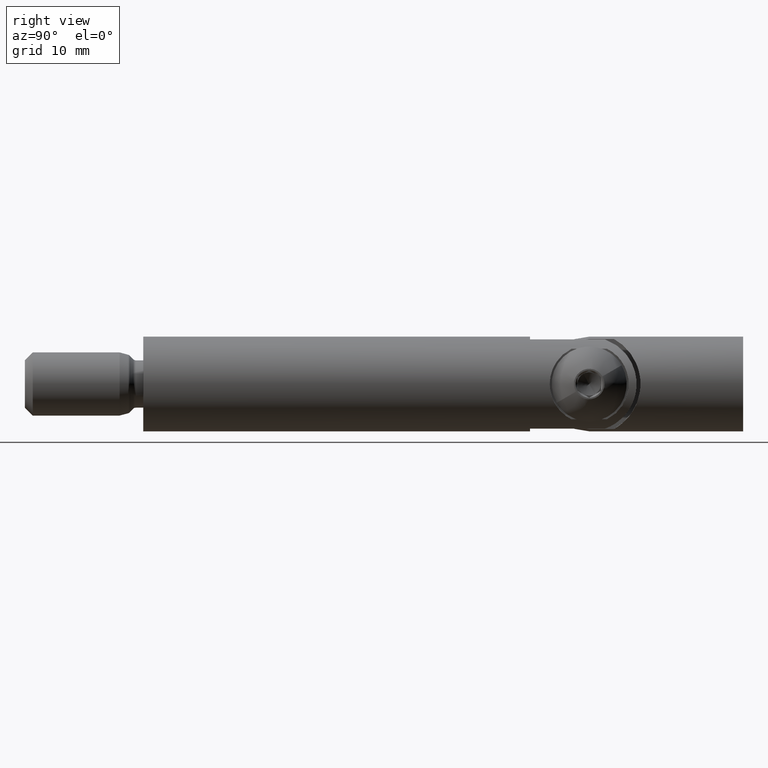
[diagram: clean part render]
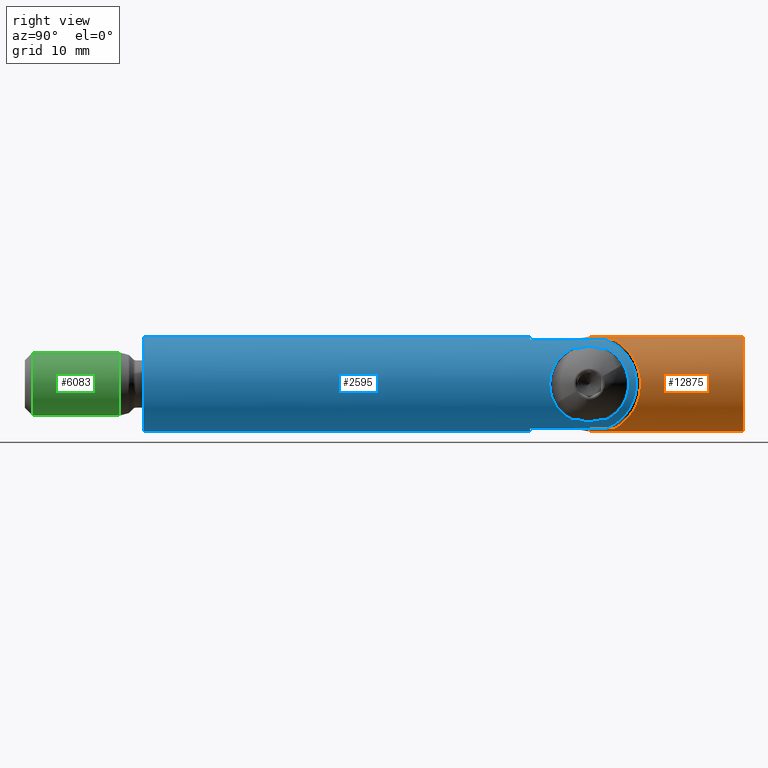
[diagram: same view with three faces highlighted in distinct colors, each labeled with its STEP entity id]
A machine part, right view with three faces highlighted in distinct colors.
Their STEP definitions:

[orange] entity #12875 — the highlighted cylindrical surface (partial cylindrical patch) has radius 6 mm, axis along (-0, -1, 0).
#17 = CARTESIAN_POINT ( 'NONE',  ( 5.702564255147019700, 12.22645336163187000, 1.873063021910693800 ) ) ;
#242 = DIRECTION ( 'NONE',  ( -6.270394377842564300E-033, -1.000000000000000000, 5.200459125639017200E-051 ) ) ;
#297 = CARTESIAN_POINT ( 'NONE',  ( 3.679300111451203400, 10.44608502935369500, -4.748389396279571400 ) ) ;
#591 = LINE ( 'NONE', #6382, #3626 ) ;
#1058 = ORIENTED_EDGE ( 'NONE', *, *, #6338, .F. ) ;
#1211 = ORIENTED_EDGE ( 'NONE', *, *, #12854, .T. ) ;
#1253 = CARTESIAN_POINT ( 'NONE',  ( 5.992946940085370300, 12.49348747734984900, -0.3394110387251262400 ) ) ;
#1317 = CARTESIAN_POINT ( 'NONE',  ( 5.878530023254685800, 12.38803403405258900, 1.213493734268718200 ) ) ;
#1586 = CARTESIAN_POINT ( 'NONE',  ( 1.875000000000001800, 25.49999999999999600, 5.699506557588999400 ) ) ;
#1700 = CARTESIAN_POINT ( 'NONE',  ( 0.0000000000000000000, 6.000000000000005300, 0.0000000000000000000 ) ) ;
#1707 = CARTESIAN_POINT ( 'NONE',  ( 3.203186419541641100, 10.06088980599747300, -5.081736704168082300 ) ) ;
#2073 = CARTESIAN_POINT ( 'NONE',  ( 7.347880794884120700E-016, 6.000000000000005300, 6.000000000000000900 ) ) ;
#2265 = EDGE_LOOP ( 'NONE', ( #1058, #1211, #7801, #5851, #12864, #5136, #14755, #12430 ) ) ;
#2307 = AXIS2_PLACEMENT_3D ( 'NONE', #8566, #5872, #10951 ) ;
#2377 = LINE ( 'NONE', #1586, #11143 ) ;
#2552 = CARTESIAN_POINT ( 'NONE',  ( 5.840910011443947200, 12.35341845738016200, 1.383063939325160900 ) ) ;
#2607 = CARTESIAN_POINT ( 'NONE',  ( 5.402969927907899500, 11.95294901552457400, -2.628867403611108200 ) ) ;
#2638 = VERTEX_POINT ( 'NONE', #2073 ) ;
#2671 = CARTESIAN_POINT ( 'NONE',  ( 3.908599352263412400, 10.63138324985793100, 4.588644465451449300 ) ) ;
#2777 = CARTESIAN_POINT ( 'NONE',  ( 5.084483756076971300, 11.66545912469395000, 3.201807720369405100 ) ) ;
#2891 = DIRECTION ( 'NONE',  ( -1.776356839400250500E-015, 0.0000000000000000000, -1.000000000000000000 ) ) ;
#2946 = VERTEX_POINT ( 'NONE', #10747 ) ;
#3115 = CIRCLE ( 'NONE', #3136, 6.000000000000000900 ) ;
#3136 = AXIS2_PLACEMENT_3D ( 'NONE', #1700, #9531, #2891 ) ;
#3626 = VECTOR ( 'NONE', #15434, 1000.000000000000000 ) ;
#3922 = CARTESIAN_POINT ( 'NONE',  ( 5.091664601751723800, 11.67191029162921900, -3.190294571182189300 ) ) ;
#4090 = VERTEX_POINT ( 'NONE', #13478 ) ;
#4144 = CARTESIAN_POINT ( 'NONE',  ( 2.165471735492421800, 9.299283041295447900, -5.603948372236426500 ) ) ;
#4255 = CARTESIAN_POINT ( 'NONE',  ( 4.338749211671258300, 11.00622850641173800, -4.154858430257192500 ) ) ;
#4266 = EDGE_CURVE ( 'NONE', #4090, #5270, #591, .T. ) ;
#4418 = EDGE_CURVE ( 'NONE', #12019, #7515, #13872, .T. ) ;
#4486 = CARTESIAN_POINT ( 'NONE',  ( 0.0000000000000000000, 25.49999999999999600, 0.0000000000000000000 ) ) ;
#4870 = EDGE_CURVE ( 'NONE', #2638, #6960, #7295, .T. ) ;
#5022 = LINE ( 'NONE', #6299, #8907 ) ;
#5136 = ORIENTED_EDGE ( 'NONE', *, *, #10599, .F. ) ;
#5239 = CARTESIAN_POINT ( 'NONE',  ( 4.540473561626751800, 11.18248850333112000, -3.934115004568863800 ) ) ;
#5270 = VERTEX_POINT ( 'NONE', #14322 ) ;
#5292 = CARTESIAN_POINT ( 'NONE',  ( 4.347331513690996900, 11.01182362367340800, 4.179968714071664600 ) ) ;
#5579 = FACE_OUTER_BOUND ( 'NONE', #2265, .T. ) ;
#5851 = ORIENTED_EDGE ( 'NONE', *, *, #10173, .F. ) ;
#5872 = DIRECTION ( 'NONE',  ( 6.270394377842564300E-033, 1.000000000000000000, -5.200459125639017200E-051 ) ) ;
#6060 = AXIS2_PLACEMENT_3D ( 'NONE', #13100, #6522, #7834 ) ;
#6299 = CARTESIAN_POINT ( 'NONE',  ( 1.875000000000001800, 25.49999999999999600, -5.699506557588999400 ) ) ;
#6338 = EDGE_CURVE ( 'NONE', #6796, #4090, #7069, .T. ) ;
#6382 = CARTESIAN_POINT ( 'NONE',  ( 1.617781153285278400E-032, 25.49999999999999600, -6.000000000000000900 ) ) ;
#6498 = CARTESIAN_POINT ( 'NONE',  ( 5.962985061293454500, 12.46584545384666700, -0.6880567118182585600 ) ) ;
#6522 = DIRECTION ( 'NONE',  ( 6.270394377842564300E-033, 1.000000000000000000, -5.200459125639017200E-051 ) ) ;
#6604 = DIRECTION ( 'NONE',  ( 6.270394377842564300E-033, 1.000000000000000000, -5.200459125639017200E-051 ) ) ;
#6624 = CARTESIAN_POINT ( 'NONE',  ( 5.707417375835262900, 12.23089832068805900, -1.858353953437220000 ) ) ;
#6793 = CARTESIAN_POINT ( 'NONE',  ( 1.875000000000001800, 9.124999999999994700, -5.699506557588999400 ) ) ;
#6796 = VERTEX_POINT ( 'NONE', #14665 ) ;
#6960 = VERTEX_POINT ( 'NONE', #9176 ) ;
#7069 = CIRCLE ( 'NONE', #2307, 6.000000000000000900 ) ;
#7295 = CIRCLE ( 'NONE', #6060, 6.000000000000000900 ) ;
#7515 = VERTEX_POINT ( 'NONE', #6793 ) ;
#7801 = ORIENTED_EDGE ( 'NONE', *, *, #4870, .T. ) ;
#7815 = CARTESIAN_POINT ( 'NONE',  ( 5.844978074349970900, 12.35715918803105700, -1.365743324101389400 ) ) ;
#7834 = DIRECTION ( 'NONE',  ( 2.696301922142130200E-033, 0.0000000000000000000, -1.000000000000000000 ) ) ;
#7842 = VECTOR ( 'NONE', #14891, 1000.000000000000000 ) ;
#8147 = CARTESIAN_POINT ( 'NONE',  ( 2.436641307235134900, 9.486557849900700400, -5.490643595582534800 ) ) ;
#8255 = LINE ( 'NONE', #12113, #7842 ) ;
#8440 = DIRECTION ( 'NONE',  ( -6.270394377842564300E-033, -1.000000000000000000, 5.200459125639017200E-051 ) ) ;
#8566 = CARTESIAN_POINT ( 'NONE',  ( 0.0000000000000000000, 25.49999999999999600, 0.0000000000000000000 ) ) ;
#8907 = VECTOR ( 'NONE', #6604, 1000.000000000000000 ) ;
#9079 = CARTESIAN_POINT ( 'NONE',  ( 5.999301171840913000, 12.49935492803685100, 0.3605767057599157400 ) ) ;
#9138 = CARTESIAN_POINT ( 'NONE',  ( 5.538450211437708300, 12.07637670554109400, -2.331938963265060200 ) ) ;
#9176 = CARTESIAN_POINT ( 'NONE',  ( 1.875000000000001800, 6.000000000000005300, 5.699506557588999400 ) ) ;
#9201 = CARTESIAN_POINT ( 'NONE',  ( 2.435892575228126400, 9.486065115203496500, 5.490915627202842800 ) ) ;
#9255 = CARTESIAN_POINT ( 'NONE',  ( 5.397768190748371000, 11.94822271513283800, 2.639629955689386100 ) ) ;
#9315 = CARTESIAN_POINT ( 'NONE',  ( 1.875000000000001800, 9.124999999999994700, 5.699506557588999400 ) ) ;
#9531 = DIRECTION ( 'NONE',  ( 6.270394377842564300E-033, 1.000000000000000000, -5.200459125639017200E-051 ) ) ;
#10173 = EDGE_CURVE ( 'NONE', #12019, #6960, #2377, .T. ) ;
#10296 = CYLINDRICAL_SURFACE ( 'NONE', #12684, 6.000000000000000900 ) ;
#10554 = CARTESIAN_POINT ( 'NONE',  ( 2.952969745838433200, 9.865114185793784100, 5.231032091592900300 ) ) ;
#10599 = EDGE_CURVE ( 'NONE', #2946, #7515, #5022, .T. ) ;
#10605 = CARTESIAN_POINT ( 'NONE',  ( 3.199166822647293400, 10.05774676843748600, 5.084145294204413200 ) ) ;
#10747 = CARTESIAN_POINT ( 'NONE',  ( 1.875000000000001800, 6.000000000000005300, -5.699506557588999400 ) ) ;
#10826 = CARTESIAN_POINT ( 'NONE',  ( 1.875000000000001800, 9.124999999999994700, -5.699506557588999400 ) ) ;
#10951 = DIRECTION ( 'NONE',  ( -2.696301922142130200E-033, 0.0000000000000000000, 1.000000000000000000 ) ) ;
#11143 = VECTOR ( 'NONE', #242, 1000.000000000000000 ) ;
#11659 = CARTESIAN_POINT ( 'NONE',  ( 5.533975599518213600, 12.07229902574371600, 2.342120990994260000 ) ) ;
#11713 = CARTESIAN_POINT ( 'NONE',  ( 5.758066267711471100, 12.27734270178811500, -1.695198033741983600 ) ) ;
#11935 = CARTESIAN_POINT ( 'NONE',  ( 2.955671222718650800, 9.867151038863983800, -5.229569349098343700 ) ) ;
#12019 = VERTEX_POINT ( 'NONE', #13721 ) ;
#12113 = CARTESIAN_POINT ( 'NONE',  ( 7.347880794884120700E-016, 25.49999999999999600, 6.000000000000000900 ) ) ;
#12430 = ORIENTED_EDGE ( 'NONE', *, *, #4266, .F. ) ;
#12684 = AXIS2_PLACEMENT_3D ( 'NONE', #4486, #8440, #15052 ) ;
#12854 = EDGE_CURVE ( 'NONE', #6796, #2638, #8255, .T. ) ;
#12864 = ORIENTED_EDGE ( 'NONE', *, *, #4418, .T. ) ;
#12875 = ADVANCED_FACE ( 'NONE', ( #5579 ), #10296, .T. ) ;
#12957 = CARTESIAN_POINT ( 'NONE',  ( 6.000331943230008800, 12.50030640904586200, -0.1625549102638968200 ) ) ;
#13017 = CARTESIAN_POINT ( 'NONE',  ( 4.916262054299631100, 11.51470031006891000, -3.453046256055512900 ) ) ;
#13082 = CARTESIAN_POINT ( 'NONE',  ( 2.165372878115555500, 9.299223726869327000, 5.603980893925760000 ) ) ;
#13100 = CARTESIAN_POINT ( 'NONE',  ( 0.0000000000000000000, 6.000000000000005300, 0.0000000000000000000 ) ) ;
#13478 = CARTESIAN_POINT ( 'NONE',  ( -4.495853365111217700E-032, 25.49999999999999600, -6.000000000000000900 ) ) ;
#13721 = CARTESIAN_POINT ( 'NONE',  ( 1.875000000000001800, 9.124999999999994700, 5.699506557588999400 ) ) ;
#13872 = B_SPLINE_CURVE_WITH_KNOTS ( 'NONE', 3,
 ( #9315, #13082, #9201, #10554, #10605, #2671, #5292, #14201, #2777, #9255, #11659, #17, #14378, #2552, #1317, #16797, #9079, #12957, #1253, #6498, #15665, #15558, #7815, #11713, #6624, #9138, #2607, #3922, #13017, #5239, #4255, #15892, #297, #1707, #11935, #8147, #4144, #10826 ),
 .UNSPECIFIED., .F., .F.,
 ( 4, 2, 2, 2, 2, 2, 2, 2, 2, 2, 2, 2, 2, 2, 2, 2, 2, 2, 4 ),
 ( 0.0000000000000000000, 0.001036031452614964600, 0.002072062905229929200, 0.004144125810459864400, 0.005180157263074830500, 0.006216188715689794800, 0.006734204441997277000, 0.007252220168304760100, 0.008288251620919727000, 0.008806267347227208400, 0.009324283073534691400, 0.009842298799842174500, 0.01036031452614966100, 0.01139634597876462900, 0.01243237743137959500, 0.01346840888399456400, 0.01450444033660953200, 0.01554047178922450200, 0.01657650324183946800 ),
 .UNSPECIFIED. ) ;
#14201 = CARTESIAN_POINT ( 'NONE',  ( 4.911105298138324700, 11.51010221644048100, 3.460332669807180100 ) ) ;
#14322 = CARTESIAN_POINT ( 'NONE',  ( -4.495853365111217700E-032, 6.000000000000005300, -6.000000000000000900 ) ) ;
#14378 = CARTESIAN_POINT ( 'NONE',  ( 5.752901328581310200, 12.27260472444943700, 1.712665152811585900 ) ) ;
#14665 = CARTESIAN_POINT ( 'NONE',  ( 7.347880794884120700E-016, 25.49999999999999600, 6.000000000000000900 ) ) ;
#14755 = ORIENTED_EDGE ( 'NONE', *, *, #16709, .T. ) ;
#14891 = DIRECTION ( 'NONE',  ( -6.270394377842564300E-033, -1.000000000000000000, 5.200459125639017200E-051 ) ) ;
#15052 = DIRECTION ( 'NONE',  ( 2.696301922142130200E-033, 0.0000000000000000000, -1.000000000000000000 ) ) ;
#15434 = DIRECTION ( 'NONE',  ( -6.270394377842564300E-033, -1.000000000000000000, 5.200459125639017200E-051 ) ) ;
#15558 = CARTESIAN_POINT ( 'NONE',  ( 5.881553957054157100, 12.39081723198165500, -1.198706441346622200 ) ) ;
#15665 = CARTESIAN_POINT ( 'NONE',  ( 5.940556381582294600, 12.44515927387464600, -0.8598627562042569000 ) ) ;
#15892 = CARTESIAN_POINT ( 'NONE',  ( 3.908788821570147800, 10.63855680015489800, -4.561684255362866500 ) ) ;
#16709 = EDGE_CURVE ( 'NONE', #2946, #5270, #3115, .T. ) ;
#16797 = CARTESIAN_POINT ( 'NONE',  ( 5.968448863603416800, 12.47084509017784400, 0.7045191780326002200 ) ) ;

[blue] entity #2595 — the highlighted cylindrical surface (partial cylindrical patch) has radius 6 mm, axis along (-0, -1, -0).
#18 = CARTESIAN_POINT ( 'NONE',  ( 5.765159873374366300, 51.78421272223530300, -1.679113494019368400 ) ) ;
#162 = CARTESIAN_POINT ( 'NONE',  ( 2.000000000000001800, 49.00000000000000000, 5.656854249492378800 ) ) ;
#647 = EDGE_CURVE ( 'NONE', #16278, #10484, #12213, .T. ) ;
#753 = DIRECTION ( 'NONE',  ( 0.0000000000000000000, 0.0000000000000000000, -1.000000000000000000 ) ) ;
#869 = CARTESIAN_POINT ( 'NONE',  ( 4.111701916349393700, 58.93588644003917700, 4.372226723729888000 ) ) ;
#984 = CARTESIAN_POINT ( 'NONE',  ( 5.922818591520822900, 61.40715862449708600, -0.9907526502935080100 ) ) ;
#1085 = CARTESIAN_POINT ( 'NONE',  ( 5.762565109398844100, 61.21261619643987500, -1.687899081049581300 ) ) ;
#1134 = CARTESIAN_POINT ( 'NONE',  ( 6.000228370917402500, 51.49972595484590700, -0.2409631312233149200 ) ) ;
#1142 = CARTESIAN_POINT ( 'NONE',  ( 5.440223127281997900, 60.81299601376663600, -2.539587668569149400 ) ) ;
#1187 = CARTESIAN_POINT ( 'NONE',  ( 4.228689934642520000, 53.87303610001355700, -4.259931322625762500 ) ) ;
#1203 = CARTESIAN_POINT ( 'NONE',  ( 5.246070261389828500, 60.56536100827363400, -2.919636966049659100 ) ) ;
#1225 = CARTESIAN_POINT ( 'NONE',  ( 0.0000000000000000000, 0.0000000000000000000, -6.000000000000000000 ) ) ;
#1318 = CARTESIAN_POINT ( 'NONE',  ( 5.443493514455044000, 52.18287411686602400, -2.532694194072650200 ) ) ;
#1624 = CARTESIAN_POINT ( 'NONE',  ( 0.0000000000000000000, 0.0000000000000000000, 0.0000000000000000000 ) ) ;
#1672 = CARTESIAN_POINT ( 'NONE',  ( 2.000000000000001800, 58.50000000000000700, -5.656854249492374400 ) ) ;
#1701 = LINE ( 'NONE', #6871, #9059 ) ;
#2396 = CARTESIAN_POINT ( 'NONE',  ( 5.984333450484840900, 61.48123203078347400, -0.4991232668755348800 ) ) ;
#2456 = CARTESIAN_POINT ( 'NONE',  ( 5.877739533197927600, 61.35277413393659200, -1.228144098935931800 ) ) ;
#2478 = EDGE_LOOP ( 'NONE', ( #14727, #9294, #9351, #3098, #5708, #9127, #9876, #5361 ) ) ;
#2503 = CARTESIAN_POINT ( 'NONE',  ( 5.924588586478165600, 51.59070650077592300, -0.9800564602597378000 ) ) ;
#2593 = LINE ( 'NONE', #4337, #9152 ) ;
#2595 = ADVANCED_FACE ( 'NONE', ( #9167, #4852 ), #9571, .T. ) ;
#2606 = LINE ( 'NONE', #11099, #4030 ) ;
#2609 = CARTESIAN_POINT ( 'NONE',  ( 4.461315443328742500, 53.50724820434923900, 4.029132544682180000 ) ) ;
#2729 = VERTEX_POINT ( 'NONE', #15784 ) ;
#2736 = VECTOR ( 'NONE', #15827, 1000.000000000000000 ) ;
#2866 = VERTEX_POINT ( 'NONE', #8850 ) ;
#2932 = DIRECTION ( 'NONE',  ( 0.0000000000000000000, 0.0000000000000000000, -1.000000000000000000 ) ) ;
#3098 = ORIENTED_EDGE ( 'NONE', *, *, #7000, .F. ) ;
#3133 = EDGE_CURVE ( 'NONE', #10246, #2866, #5452, .T. ) ;
#3137 = DIRECTION ( 'NONE',  ( -0.0000000000000000000, 1.000000000000000000, -0.0000000000000000000 ) ) ;
#3236 = CARTESIAN_POINT ( 'NONE',  ( 0.0000000000000000000, 0.0000000000000000000, 0.0000000000000000000 ) ) ;
#3550 = DIRECTION ( 'NONE',  ( -8.881784197001252300E-015, 0.0000000000000000000, -1.000000000000000000 ) ) ;
#3651 = CARTESIAN_POINT ( 'NONE',  ( 4.223394625119325100, 59.13568843155970700, -4.272325727969628100 ) ) ;
#3707 = CARTESIAN_POINT ( 'NONE',  ( 5.879915694987170500, 61.35540831071067200, 1.217818505035711500 ) ) ;
#3759 = CARTESIAN_POINT ( 'NONE',  ( 5.765159873374366300, 61.21578727776471100, 1.679113494019368400 ) ) ;
#3866 = AXIS2_PLACEMENT_3D ( 'NONE', #3236, #11038, #12336 ) ;
#3923 = CARTESIAN_POINT ( 'NONE',  ( 4.000000000000003600, 54.26393202250022100, -4.472135954999579600 ) ) ;
#3950 = AXIS2_PLACEMENT_3D ( 'NONE', #5811, #3137, #753 ) ;
#3952 = CARTESIAN_POINT ( 'NONE',  ( 4.000000000000003600, 54.26393202250022100, -4.472135954999579600 ) ) ;
#4030 = VECTOR ( 'NONE', #15111, 1000.000000000000000 ) ;
#4080 = CARTESIAN_POINT ( 'NONE',  ( 4.000000000000003600, 58.73606797749978600, -4.472135954999579600 ) ) ;
#4337 = CARTESIAN_POINT ( 'NONE',  ( 2.000000000000015500, 0.0000000000000000000, 5.656854249492374400 ) ) ;
#4389 = CARTESIAN_POINT ( 'NONE',  ( 8.399999999999989700, 64.89999999999999100, -3.394112549695417900 ) ) ;
#4852 = FACE_OUTER_BOUND ( 'NONE', #2478, .T. ) ;
#4917 = CARTESIAN_POINT ( 'NONE',  ( 4.000000000000003600, 54.26393202250022100, 4.472135954999579600 ) ) ;
#4971 = CARTESIAN_POINT ( 'NONE',  ( 5.924588586478165600, 61.40929349922407700, 0.9800564602597378000 ) ) ;
#5016 = CARTESIAN_POINT ( 'NONE',  ( 5.246070261389828500, 52.43463899172638100, 2.919636966049659100 ) ) ;
#5043 = EDGE_CURVE ( 'NONE', #7086, #10949, #2593, .T. ) ;
#5361 = ORIENTED_EDGE ( 'NONE', *, *, #5043, .F. ) ;
#5452 = CIRCLE ( 'NONE', #3866, 6.000000000000000000 ) ;
#5605 = ORIENTED_EDGE ( 'NONE', *, *, #11664, .F. ) ;
#5638 = DIRECTION ( 'NONE',  ( 0.0000000000000000000, 1.000000000000000000, 0.0000000000000000000 ) ) ;
#5655 = DIRECTION ( 'NONE',  ( -0.0000000000000000000, -1.000000000000000000, -0.0000000000000000000 ) ) ;
#5708 = ORIENTED_EDGE ( 'NONE', *, *, #647, .F. ) ;
#5811 = CARTESIAN_POINT ( 'NONE',  ( 0.0000000000000000000, 49.00000000000000000, 0.0000000000000000000 ) ) ;
#6259 = CARTESIAN_POINT ( 'NONE',  ( 4.810527154161737200, 53.01368526825294200, -3.590692757759571800 ) ) ;
#6384 = CARTESIAN_POINT ( 'NONE',  ( 4.462846586125853500, 53.51066555571644300, -4.013954880855022700 ) ) ;
#6395 = CARTESIAN_POINT ( 'NONE',  ( 6.000228370917402500, 61.50027404515409300, 0.2409631312233149200 ) ) ;
#6500 = CARTESIAN_POINT ( 'NONE',  ( 5.141831821744303500, 52.56964407484139900, 3.098745170681813200 ) ) ;
#6788 = CARTESIAN_POINT ( 'NONE',  ( 4.000000000000003600, 0.0000000000000000000, -4.472135954999579600 ) ) ;
#6867 = DIRECTION ( 'NONE',  ( -0.0000000000000000000, -1.000000000000000000, -0.0000000000000000000 ) ) ;
#6871 = CARTESIAN_POINT ( 'NONE',  ( 2.000000000000015500, 0.0000000000000000000, -5.656854249492374400 ) ) ;
#7000 = EDGE_CURVE ( 'NONE', #10484, #10246, #16777, .T. ) ;
#7086 = VERTEX_POINT ( 'NONE', #162 ) ;
#7315 = EDGE_CURVE ( 'NONE', #11461, #8398, #9690, .T. ) ;
#7481 = CARTESIAN_POINT ( 'NONE',  ( 4.807646436193607500, 59.98235139120349400, -3.594557953550067800 ) ) ;
#7632 = CARTESIAN_POINT ( 'NONE',  ( 5.877739533197927600, 51.64722586606337300, 1.228144098935931800 ) ) ;
#7659 = EDGE_CURVE ( 'NONE', #2729, #7086, #13412, .T. ) ;
#7703 = CARTESIAN_POINT ( 'NONE',  ( 5.443493514455044000, 60.81712588313401100, 2.532694194072650200 ) ) ;
#7749 = CARTESIAN_POINT ( 'NONE',  ( 5.694344034310240100, 51.87085036666032800, -1.904319892558800500 ) ) ;
#7816 = CARTESIAN_POINT ( 'NONE',  ( 5.762565109398844100, 51.78738380356013200, 1.687899081049581300 ) ) ;
#7935 = CARTESIAN_POINT ( 'NONE',  ( 4.580100148548351200, 59.66078096023783000, 3.880325838228253900 ) ) ;
#8010 = CARTESIAN_POINT ( 'NONE',  ( 4.000000000000003600, 0.0000000000000000000, 4.472135954999579600 ) ) ;
#8398 = VERTEX_POINT ( 'NONE', #12980 ) ;
#8654 = EDGE_CURVE ( 'NONE', #2729, #2866, #2606, .T. ) ;
#8687 = AXIS2_PLACEMENT_3D ( 'NONE', #12744, #8966, #3550 ) ;
#8850 = CARTESIAN_POINT ( 'NONE',  ( 7.347880794884140400E-016, 0.0000000000000000000, 6.000000000000017800 ) ) ;
#8901 = CARTESIAN_POINT ( 'NONE',  ( 5.440223127281997900, 52.18700398623339300, 2.539587668569149400 ) ) ;
#8910 = CARTESIAN_POINT ( 'NONE',  ( 5.691937540506651200, 61.12619348983287200, -1.911543563505184500 ) ) ;
#8955 = CARTESIAN_POINT ( 'NONE',  ( 5.922818591520822900, 51.59284137550290700, 0.9907526502935080100 ) ) ;
#8963 = CARTESIAN_POINT ( 'NONE',  ( 5.141831821744303500, 60.43035592515862200, -3.098745170681813200 ) ) ;
#8966 = DIRECTION ( 'NONE',  ( -0.0000000000000000000, 1.000000000000000000, -0.0000000000000000000 ) ) ;
#9015 = CARTESIAN_POINT ( 'NONE',  ( 4.580100148548351200, 53.33921903976217000, -3.880325838228253900 ) ) ;
#9059 = VECTOR ( 'NONE', #9227, 1000.000000000000000 ) ;
#9127 = ORIENTED_EDGE ( 'NONE', *, *, #13836, .F. ) ;
#9139 = CARTESIAN_POINT ( 'NONE',  ( 5.533395651579972700, 52.07033412279341200, -2.330991376508201500 ) ) ;
#9152 = VECTOR ( 'NONE', #5638, 1000.000000000000000 ) ;
#9167 = FACE_BOUND ( 'NONE', #15824, .T. ) ;
#9214 = ORIENTED_EDGE ( 'NONE', *, *, #12498, .F. ) ;
#9227 = DIRECTION ( 'NONE',  ( -0.0000000000000000000, -1.000000000000000000, -0.0000000000000000000 ) ) ;
#9294 = ORIENTED_EDGE ( 'NONE', *, *, #8654, .T. ) ;
#9351 = ORIENTED_EDGE ( 'NONE', *, *, #3133, .F. ) ;
#9571 = CYLINDRICAL_SURFACE ( 'NONE', #15504, 6.000000000000000000 ) ;
#9690 = B_SPLINE_CURVE_WITH_KNOTS ( 'NONE', 3,
 ( #11442, #3651, #15236, #7481, #14094, #8963, #1203, #1142, #12742, #8910, #1085, #2456, #984, #2396, #14040, #6395, #11548, #4971, #3707, #3759, #15446, #12861, #7703, #16753, #11332, #10341, #12637, #7935, #12070, #13579, #869, #16461 ),
 .UNSPECIFIED., .F., .F.,
 ( 4, 2, 2, 2, 2, 2, 2, 2, 2, 2, 2, 2, 2, 2, 2, 4 ),
 ( 0.0000000000000000000, 0.001477833795125596700, 0.002216750692688403100, 0.002955667590251209400, 0.003694584487814015600, 0.004433501385376821000, 0.005172418282939626400, 0.005911335180502431800, 0.006650252078065236300, 0.007389168975628041700, 0.008128085873190847900, 0.008867002770753654200, 0.009605919668316460400, 0.01034483656587926700, 0.01108375346344207300, 0.01182267036100487900 ),
 .UNSPECIFIED. ) ;
#9713 = CARTESIAN_POINT ( 'NONE',  ( 2.000000000000001800, 58.50000000000000700, -5.656854249492374400 ) ) ;
#9869 = CARTESIAN_POINT ( 'NONE',  ( 0.0000000000000000000, 0.0000000000000000000, -6.000000000000017800 ) ) ;
#9876 = ORIENTED_EDGE ( 'NONE', *, *, #11148, .F. ) ;
#10246 = VERTEX_POINT ( 'NONE', #9869 ) ;
#10274 = CARTESIAN_POINT ( 'NONE',  ( 5.248398599822289500, 52.43162905925136400, -2.915557178308602700 ) ) ;
#10330 = CARTESIAN_POINT ( 'NONE',  ( 4.111701916349393700, 54.06411355996085900, -4.372226723729888000 ) ) ;
#10341 = CARTESIAN_POINT ( 'NONE',  ( 4.923739787570553100, 60.14038394394096800, 3.434699158272677400 ) ) ;
#10359 = DIRECTION ( 'NONE',  ( -0.0000000000000000000, -1.000000000000000000, -0.0000000000000000000 ) ) ;
#10450 = CARTESIAN_POINT ( 'NONE',  ( 5.985179456329539100, 51.51775292995564100, -0.4887611480621570400 ) ) ;
#10484 = VERTEX_POINT ( 'NONE', #13789 ) ;
#10759 = B_SPLINE_CURVE_WITH_KNOTS ( 'NONE', 3,
 ( #12791, #16741, #2609, #11714, #14031, #6500, #5016, #8901, #11660, #15375, #7816, #7632, #8955, #15323, #11595, #1134, #10450, #2503, #12907, #18, #7749, #9139, #1318, #10274, #12734, #14142, #6259, #9015, #6384, #1187, #10330, #3923 ),
 .UNSPECIFIED., .F., .F.,
 ( 4, 2, 2, 2, 2, 2, 2, 2, 2, 2, 2, 2, 2, 2, 2, 4 ),
 ( 0.0000000000000000000, 0.001477833795125596700, 0.002216750692688403100, 0.002955667590251209400, 0.003694584487814015600, 0.004433501385376821000, 0.005172418282939626400, 0.005911335180502431800, 0.006650252078065236300, 0.007389168975628041700, 0.008128085873190847900, 0.008867002770753654200, 0.009605919668316460400, 0.01034483656587926700, 0.01108375346344207300, 0.01182267036100487900 ),
 .UNSPECIFIED. ) ;
#10812 = VERTEX_POINT ( 'NONE', #4917 ) ;
#10903 = CARTESIAN_POINT ( 'NONE',  ( 2.000000000000001800, 58.50000000000000700, 5.656854249492374400 ) ) ;
#10949 = VERTEX_POINT ( 'NONE', #15850 ) ;
#11038 = DIRECTION ( 'NONE',  ( -0.0000000000000000000, -1.000000000000000000, -0.0000000000000000000 ) ) ;
#11099 = CARTESIAN_POINT ( 'NONE',  ( 7.347880794884119700E-016, 0.0000000000000000000, 6.000000000000000000 ) ) ;
#11148 = EDGE_CURVE ( 'NONE', #10949, #11646, #11214, .T. ) ;
#11214 =( BOUNDED_CURVE ( )  B_SPLINE_CURVE ( 3, ( #10903, #12183, #4389, #9713 ),
 .UNSPECIFIED., .F., .F. ) 
 B_SPLINE_CURVE_WITH_KNOTS ( ( 4, 4 ),
 ( 1.910633236249020400, 4.372552070930566100 ),
 .UNSPECIFIED. ) 
 CURVE ( )  GEOMETRIC_REPRESENTATION_ITEM ( )  RATIONAL_B_SPLINE_CURVE ( ( 1.000000000000000000, 0.5555555555555566900, 0.5555555555555566900, 1.000000000000000000 ) ) 
 REPRESENTATION_ITEM ( '' )  );
#11332 = CARTESIAN_POINT ( 'NONE',  ( 5.142492798692936500, 60.43121023963446700, 3.097602237043300700 ) ) ;
#11442 = CARTESIAN_POINT ( 'NONE',  ( 4.000000000000003600, 58.73606797749978600, -4.472135954999579600 ) ) ;
#11461 = VERTEX_POINT ( 'NONE', #4080 ) ;
#11498 = VECTOR ( 'NONE', #6867, 1000.000000000000000 ) ;
#11548 = CARTESIAN_POINT ( 'NONE',  ( 5.985179456329539100, 61.48224707004436600, 0.4887611480621570400 ) ) ;
#11595 = CARTESIAN_POINT ( 'NONE',  ( 5.999766363344014600, 51.50028036404102500, 0.2522049148149579900 ) ) ;
#11646 = VERTEX_POINT ( 'NONE', #1672 ) ;
#11660 = CARTESIAN_POINT ( 'NONE',  ( 5.530168985700139000, 52.07436080879350000, 2.338671150420103200 ) ) ;
#11664 = EDGE_CURVE ( 'NONE', #8398, #10812, #12720, .T. ) ;
#11714 = CARTESIAN_POINT ( 'NONE',  ( 4.807646436193607500, 53.01764860879649900, 3.594557953550067800 ) ) ;
#12070 = CARTESIAN_POINT ( 'NONE',  ( 4.462846586125853500, 59.48933444428359300, 4.013954880855022700 ) ) ;
#12183 = CARTESIAN_POINT ( 'NONE',  ( 8.399999999999989700, 64.89999999999999100, 3.394112549695417900 ) ) ;
#12213 = CIRCLE ( 'NONE', #8687, 6.000000000000000000 ) ;
#12336 = DIRECTION ( 'NONE',  ( 0.0000000000000000000, 0.0000000000000000000, -1.000000000000000000 ) ) ;
#12498 = EDGE_CURVE ( 'NONE', #10812, #13701, #10759, .T. ) ;
#12608 = EDGE_CURVE ( 'NONE', #13701, #11461, #16538, .T. ) ;
#12637 = CARTESIAN_POINT ( 'NONE',  ( 4.810527154161737200, 59.98631473174709300, 3.590692757759571800 ) ) ;
#12720 = LINE ( 'NONE', #8010, #11498 ) ;
#12734 = CARTESIAN_POINT ( 'NONE',  ( 5.142492798692936500, 52.56878976036559000, -3.097602237043300700 ) ) ;
#12742 = CARTESIAN_POINT ( 'NONE',  ( 5.530168985700139000, 60.92563919120651400, -2.338671150420103200 ) ) ;
#12744 = CARTESIAN_POINT ( 'NONE',  ( 0.0000000000000000000, 49.00000000000000000, 0.0000000000000000000 ) ) ;
#12791 = CARTESIAN_POINT ( 'NONE',  ( 4.000000000000003600, 54.26393202250022100, 4.472135954999579600 ) ) ;
#12861 = CARTESIAN_POINT ( 'NONE',  ( 5.533395651579972700, 60.92966587720660200, 2.330991376508201500 ) ) ;
#12907 = CARTESIAN_POINT ( 'NONE',  ( 5.879915694987170500, 51.64459168928934200, -1.217818505035711500 ) ) ;
#12942 = VECTOR ( 'NONE', #10359, 1000.000000000000000 ) ;
#12980 = CARTESIAN_POINT ( 'NONE',  ( 4.000000000000003600, 58.73606797749978600, 4.472135954999579600 ) ) ;
#13412 = CIRCLE ( 'NONE', #3950, 6.000000000000000000 ) ;
#13466 = ORIENTED_EDGE ( 'NONE', *, *, #7315, .F. ) ;
#13579 = CARTESIAN_POINT ( 'NONE',  ( 4.228689934642520000, 59.12696389998643600, 4.259931322625762500 ) ) ;
#13661 = ORIENTED_EDGE ( 'NONE', *, *, #12608, .F. ) ;
#13701 = VERTEX_POINT ( 'NONE', #3952 ) ;
#13789 = CARTESIAN_POINT ( 'NONE',  ( 0.0000000000000000000, 49.00000000000000000, -6.000000000000000000 ) ) ;
#13836 = EDGE_CURVE ( 'NONE', #11646, #16278, #1701, .T. ) ;
#14031 = CARTESIAN_POINT ( 'NONE',  ( 4.922195747481138600, 52.86169349946319300, 3.436952885828493500 ) ) ;
#14040 = CARTESIAN_POINT ( 'NONE',  ( 5.999766363344014600, 61.49971963595899600, -0.2522049148149579900 ) ) ;
#14094 = CARTESIAN_POINT ( 'NONE',  ( 4.922195747481138600, 60.13830650053680700, -3.436952885828493500 ) ) ;
#14142 = CARTESIAN_POINT ( 'NONE',  ( 4.923739787570553100, 52.85961605605902500, -3.434699158272677400 ) ) ;
#14727 = ORIENTED_EDGE ( 'NONE', *, *, #7659, .F. ) ;
#14920 = CARTESIAN_POINT ( 'NONE',  ( 2.000000000000001800, 49.00000000000000000, -5.656854249492378800 ) ) ;
#15111 = DIRECTION ( 'NONE',  ( -0.0000000000000000000, -1.000000000000000000, -0.0000000000000000000 ) ) ;
#15236 = CARTESIAN_POINT ( 'NONE',  ( 4.461315443328742500, 59.49275179565079000, -4.029132544682180000 ) ) ;
#15323 = CARTESIAN_POINT ( 'NONE',  ( 5.984333450484840900, 51.51876796921652600, 0.4991232668755348800 ) ) ;
#15375 = CARTESIAN_POINT ( 'NONE',  ( 5.691937540506651200, 51.87380651016710000, 1.911543563505184500 ) ) ;
#15446 = CARTESIAN_POINT ( 'NONE',  ( 5.694344034310240100, 61.12914963333970100, 1.904319892558800500 ) ) ;
#15504 = AXIS2_PLACEMENT_3D ( 'NONE', #1624, #5655, #2932 ) ;
#15784 = CARTESIAN_POINT ( 'NONE',  ( 7.347880794884119700E-016, 49.00000000000000000, 6.000000000000000000 ) ) ;
#15824 = EDGE_LOOP ( 'NONE', ( #9214, #5605, #13466, #13661 ) ) ;
#15827 = DIRECTION ( 'NONE',  ( 0.0000000000000000000, 1.000000000000000000, 0.0000000000000000000 ) ) ;
#15850 = CARTESIAN_POINT ( 'NONE',  ( 2.000000000000001800, 58.50000000000000700, 5.656854249492374400 ) ) ;
#16278 = VERTEX_POINT ( 'NONE', #14920 ) ;
#16461 = CARTESIAN_POINT ( 'NONE',  ( 4.000000000000003600, 58.73606797749978600, 4.472135954999579600 ) ) ;
#16538 = LINE ( 'NONE', #6788, #2736 ) ;
#16741 = CARTESIAN_POINT ( 'NONE',  ( 4.223394625119325100, 53.86431156844031400, 4.272325727969628100 ) ) ;
#16753 = CARTESIAN_POINT ( 'NONE',  ( 5.248398599822289500, 60.56837094074864300, 2.915557178308602700 ) ) ;
#16777 = LINE ( 'NONE', #1225, #12942 ) ;

[green] entity #6083 — the highlighted cylindrical surface (edge-blend (fillet) strip) has radius 4 mm, axis along (-0, -1, -0).
#82 = AXIS2_PLACEMENT_3D ( 'NONE', #1567, #10492, #9408 ) ;
#712 = DIRECTION ( 'NONE',  ( 0.0000000000000000000, 0.0000000000000000000, -1.000000000000000000 ) ) ;
#780 = VERTEX_POINT ( 'NONE', #16134 ) ;
#1337 = CARTESIAN_POINT ( 'NONE',  ( 0.0000000000000000000, 0.0000000000000000000, -4.000000000000000900 ) ) ;
#1469 = ORIENTED_EDGE ( 'NONE', *, *, #6007, .T. ) ;
#1567 = CARTESIAN_POINT ( 'NONE',  ( 0.0000000000000000000, -13.99999999999999800, 0.0000000000000000000 ) ) ;
#1748 = ORIENTED_EDGE ( 'NONE', *, *, #15361, .F. ) ;
#2424 = DIRECTION ( 'NONE',  ( -0.0000000000000000000, -1.000000000000000000, -0.0000000000000000000 ) ) ;
#2480 = CARTESIAN_POINT ( 'NONE',  ( 4.898587196589413800E-016, 0.0000000000000000000, 4.000000000000000900 ) ) ;
#4016 = EDGE_CURVE ( 'NONE', #7016, #780, #10387, .T. ) ;
#5023 = FACE_OUTER_BOUND ( 'NONE', #5876, .T. ) ;
#5166 = DIRECTION ( 'NONE',  ( 0.0000000000000000000, 0.0000000000000000000, -1.000000000000000000 ) ) ;
#5431 = CYLINDRICAL_SURFACE ( 'NONE', #7325, 4.000000000000000900 ) ;
#5876 = EDGE_LOOP ( 'NONE', ( #16526, #1469, #1748, #15523 ) ) ;
#6007 = EDGE_CURVE ( 'NONE', #14611, #10058, #14574, .T. ) ;
#6083 = ADVANCED_FACE ( 'NONE', ( #5023 ), #5431, .T. ) ;
#6298 = DIRECTION ( 'NONE',  ( -0.0000000000000000000, -1.000000000000000000, -0.0000000000000000000 ) ) ;
#6396 = EDGE_CURVE ( 'NONE', #7016, #14611, #7893, .T. ) ;
#7016 = VERTEX_POINT ( 'NONE', #16828 ) ;
#7325 = AXIS2_PLACEMENT_3D ( 'NONE', #8886, #2424, #5166 ) ;
#7647 = DIRECTION ( 'NONE',  ( -0.0000000000000000000, -1.000000000000000000, -0.0000000000000000000 ) ) ;
#7893 = CIRCLE ( 'NONE', #11137, 4.000000000000000000 ) ;
#8505 = VECTOR ( 'NONE', #6298, 1000.000000000000000 ) ;
#8886 = CARTESIAN_POINT ( 'NONE',  ( 0.0000000000000000000, 0.0000000000000000000, 0.0000000000000000000 ) ) ;
#9408 = DIRECTION ( 'NONE',  ( 0.0000000000000000000, 0.0000000000000000000, -1.000000000000000000 ) ) ;
#10058 = VERTEX_POINT ( 'NONE', #13350 ) ;
#10387 = LINE ( 'NONE', #1337, #12772 ) ;
#10492 = DIRECTION ( 'NONE',  ( -0.0000000000000000000, -1.000000000000000000, -0.0000000000000000000 ) ) ;
#10597 = CARTESIAN_POINT ( 'NONE',  ( 4.898587196589413800E-016, -2.999999999999999100, 4.000000000000000000 ) ) ;
#11109 = DIRECTION ( 'NONE',  ( -0.0000000000000000000, -1.000000000000000000, -0.0000000000000000000 ) ) ;
#11137 = AXIS2_PLACEMENT_3D ( 'NONE', #13639, #11109, #712 ) ;
#12772 = VECTOR ( 'NONE', #7647, 1000.000000000000000 ) ;
#13350 = CARTESIAN_POINT ( 'NONE',  ( 0.0000000000000000000, -13.99999999999999800, 4.000000000000000000 ) ) ;
#13639 = CARTESIAN_POINT ( 'NONE',  ( 0.0000000000000000000, -2.999999999999999100, 0.0000000000000000000 ) ) ;
#14574 = LINE ( 'NONE', #2480, #8505 ) ;
#14611 = VERTEX_POINT ( 'NONE', #10597 ) ;
#15361 = EDGE_CURVE ( 'NONE', #780, #10058, #16494, .T. ) ;
#15523 = ORIENTED_EDGE ( 'NONE', *, *, #4016, .F. ) ;
#16134 = CARTESIAN_POINT ( 'NONE',  ( 4.898587196589412800E-016, -13.99999999999999800, -4.000000000000000000 ) ) ;
#16494 = CIRCLE ( 'NONE', #82, 4.000000000000001800 ) ;
#16526 = ORIENTED_EDGE ( 'NONE', *, *, #6396, .T. ) ;
#16828 = CARTESIAN_POINT ( 'NONE',  ( 0.0000000000000000000, -2.999999999999999100, -4.000000000000000000 ) ) ;